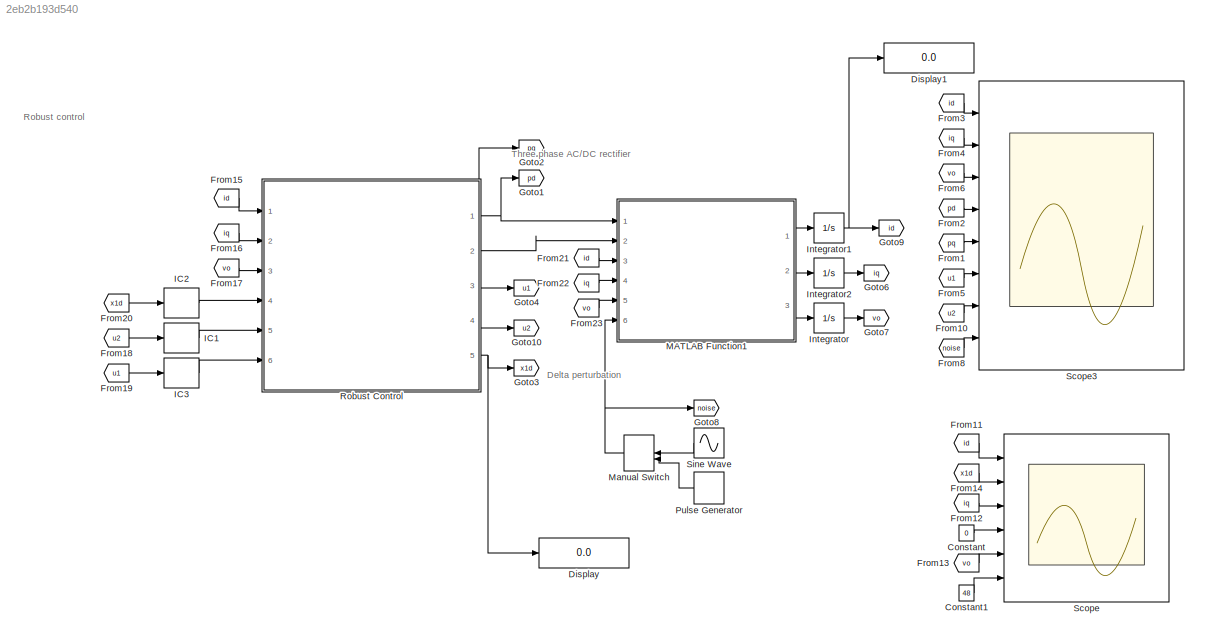
MODEL slx_2eb2b193d540
KIND model
CONFIG AbsTol = auto
CONFIG EnableMultiTasking = off
CONFIG FixedStep = auto
CONFIG MaxStep = auto
CONFIG MinStep = auto
CONFIG RelTol = 1e-3
CONFIG SampleTimeConstraint = Unconstrained
CONFIG SolverName = VariableStepAuto
CONFIG StartTime = 0.0
CONFIG StopTime = 10
BLOCK [Constant] Constant
  Value = 0
BLOCK [Constant] Constant1
  Value = 48
BLOCK [Display] Display
  Decimation = 1
  Ports = [1]
BLOCK [Display] Display1
  Decimation = 1
  Ports = [1]
BLOCK [From] From1
  GotoTag = pq
BLOCK [From] From10
  GotoTag = u2
BLOCK [From] From11
  GotoTag = id
BLOCK [From] From12
  GotoTag = iq
BLOCK [From] From13
  GotoTag = vo
BLOCK [From] From14
  GotoTag = x1d
BLOCK [From] From15
  GotoTag = id
BLOCK [From] From16
  GotoTag = iq
BLOCK [From] From17
  GotoTag = vo
BLOCK [From] From18
  GotoTag = u2
BLOCK [From] From19
  GotoTag = u1
BLOCK [From] From2
  GotoTag = pd
BLOCK [From] From20
  GotoTag = x1d
BLOCK [From] From21
  GotoTag = id
BLOCK [From] From22
  GotoTag = iq
BLOCK [From] From23
  GotoTag = vo
BLOCK [From] From3
  GotoTag = id
BLOCK [From] From4
  GotoTag = iq
BLOCK [From] From5
  GotoTag = u1
BLOCK [From] From6
  GotoTag = vo
BLOCK [From] From8
  GotoTag = noise
BLOCK [Goto] Goto1
  GotoTag = pd
BLOCK [Goto] Goto10
  GotoTag = u2
BLOCK [Goto] Goto2
  GotoTag = pq
BLOCK [Goto] Goto3
  GotoTag = x1d
BLOCK [Goto] Goto4
  GotoTag = u1
BLOCK [Goto] Goto6
  GotoTag = iq
BLOCK [Goto] Goto7
  GotoTag = vo
BLOCK [Goto] Goto8
  GotoTag = noise
BLOCK [Goto] Goto9
  GotoTag = id
BLOCK [InitialCondition] IC1
  Value = 0.00001
BLOCK [InitialCondition] IC2
  Value = 0.00001
BLOCK [InitialCondition] IC3
  Value = 0.00001
BLOCK [Integrator] Integrator
  InitialCondition = 0.1
  Ports = [1, 1]
BLOCK [Integrator] Integrator1
  InitialCondition = 0.1
  Ports = [1, 1]
BLOCK [Integrator] Integrator2
  InitialCondition = 0.1
  Ports = [1, 1]
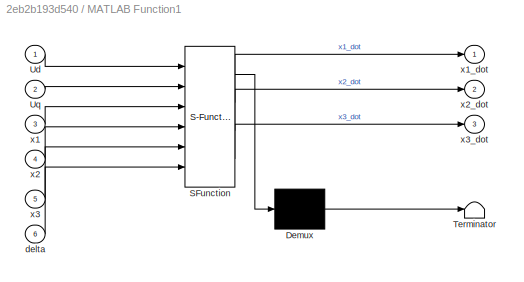
BLOCK [SubSystem] MATLAB Function1
  ErrorFcn = Stateflow.Translate.translate
  PermitHierarchicalResolution = ExplicitOnly
  Ports = [6, 3]
  RequestExecContextInheritance = off
  SFBlockType = MATLAB Function
  TreatAsAtomicUnit = on
BLOCK [Demux] MATLAB Function1/ Demux 
  Outputs = 1
  Ports = [1, 1]
BLOCK [S-Function] MATLAB Function1/ SFunction 
  EnableBusSupport = on
  FunctionName = sf_sfun
  Parameters = C,Em,L,R,Rl,w
  PortCounts = [6 4]
  Ports = [6, 4]
  SFcnIsStateOwnerBlock = off
  SFunctionDeploymentMode = off
  Tag = Stateflow S-Function 7
BLOCK [Terminator] MATLAB Function1/ Terminator 
BLOCK [Inport] MATLAB Function1/Ud
BLOCK [Inport] MATLAB Function1/Uq
  Port = 2
BLOCK [Inport] MATLAB Function1/delta
  Port = 6
BLOCK [Inport] MATLAB Function1/x1
  Port = 3
BLOCK [Outport] MATLAB Function1/x1_dot
BLOCK [Inport] MATLAB Function1/x2
  Port = 4
BLOCK [Outport] MATLAB Function1/x2_dot
  Port = 2
BLOCK [Inport] MATLAB Function1/x3
  Port = 5
BLOCK [Outport] MATLAB Function1/x3_dot
  Port = 3
BLOCK [ManualSwitch] Manual Switch
  CurrentSetting = 0
  NameLocation = top
BLOCK [DiscretePulseGenerator] Pulse Generator
  Amplitude = 50
  NameLocation = top
  Period = 1
  Ports = [0, 1]
  PulseType = Time based
  PulseWidth = 20
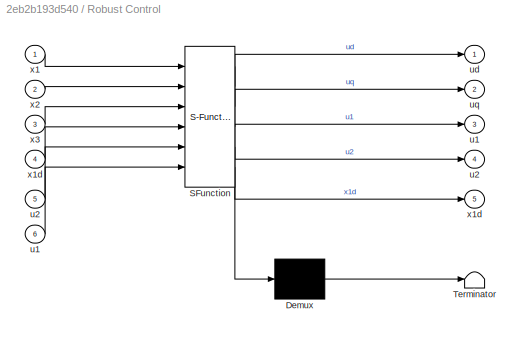
BLOCK [SubSystem] Robust Control
  ErrorFcn = Stateflow.Translate.translate
  PermitHierarchicalResolution = ExplicitOnly
  Ports = [6, 5]
  RequestExecContextInheritance = off
  SFBlockType = MATLAB Function
  TreatAsAtomicUnit = on
BLOCK [Demux] Robust Control/ Demux 
  Outputs = 1
  Ports = [1, 1]
BLOCK [S-Function] Robust Control/ SFunction 
  EnableBusSupport = on
  FunctionName = sf_sfun
  Parameters = C,Em,L,R,Rl,epsilon,k1,k2,k3,w,x2d,x3d
  PortCounts = [6 6]
  Ports = [6, 6]
  SFcnIsStateOwnerBlock = off
  SFunctionDeploymentMode = off
  Tag = Stateflow S-Function 4
BLOCK [Terminator] Robust Control/ Terminator 
BLOCK [Outport] Robust Control/u1
  Port = 3
BLOCK [Inport] Robust Control/u1 
  Port = 6
BLOCK [Outport] Robust Control/u2
  Port = 4
BLOCK [Inport] Robust Control/u2 
  Port = 5
BLOCK [Outport] Robust Control/ud
  VectorParamsAs1DForOutWhenUnconnected = off
BLOCK [Outport] Robust Control/uq
  Port = 2
  VectorParamsAs1DForOutWhenUnconnected = off
BLOCK [Inport] Robust Control/x1
BLOCK [Outport] Robust Control/x1d
  Port = 5
BLOCK [Inport] Robust Control/x1d 
  Port = 4
BLOCK [Inport] Robust Control/x2
  Port = 2
BLOCK [Inport] Robust Control/x3
  Port = 3
BLOCK [Scope] Scope
  Floating = off
  NumInputPorts = 6
  Ports = [6]
  ScopeSpecificationString = Simulink.scopes.TimeScopeBlockCfg('CurrentConfiguration', extmgr.ConfigurationSet(extmgr.Configuration('Core','General UI',true),extmgr.Configuration('Core','Source UI',true),extmgr.Configuration('Sources','WiredSimulink',true,'DataLoggingVariableName','ScopeData1'),extmgr.Configuration('Visuals','Time Domain',true,'SerializedDisplays',{struct('MinYLimReal','-3.16663','MaxYLimReal','29.49971','YLa...<+3032ch>
BLOCK [Scope] Scope3
  Floating = off
  NumInputPorts = 8
  Ports = [8]
  ScopeSpecificationString = Simulink.scopes.TimeScopeBlockCfg('CurrentConfiguration', extmgr.ConfigurationSet(extmgr.Configuration('Core','General UI',true),extmgr.Configuration('Core','Source UI',true),extmgr.Configuration('Sources','WiredSimulink',true,'DataLoggingVariableName','ScopeData2'),extmgr.Configuration('Visuals','Time Domain',true,'SerializedDisplays',{struct('MinYLimReal','-99.81534','MaxYLimReal','899.33804','Y...<+9454ch>
BLOCK [Sin] Sine Wave
  Amplitude = 10
  Frequency = 5
  NameLocation = top
  Ports = [0, 1]
  SampleTime = 0
ANNOTATION (root): Delta perturbation
ANNOTATION (root): Robust control
ANNOTATION (root): Three phase AC/DC rectifier
LINE Constant1:1 -> Scope:6
LINE Constant:1 -> Scope:4
LINE From10:1 -> Scope3:7
LINE From11:1 -> Scope:1
LINE From12:1 -> Scope:3
LINE From13:1 -> Scope:5
LINE From14:1 -> Scope:2
LINE From15:1 -> Robust Control:1
LINE From16:1 -> Robust Control:2
LINE From17:1 -> Robust Control:3
LINE From18:1 -> IC1:1
LINE From19:1 -> IC3:1
LINE From1:1 -> Scope3:5
LINE From20:1 -> IC2:1
LINE From21:1 -> MATLAB Function1:3
LINE From22:1 -> MATLAB Function1:4
LINE From23:1 -> MATLAB Function1:5
LINE From2:1 -> Scope3:4
LINE From3:1 -> Scope3:1
LINE From4:1 -> Scope3:2
LINE From5:1 -> Scope3:6
LINE From6:1 -> Scope3:3
LINE From8:1 -> Scope3:8
LINE IC1:1 -> Robust Control:5
LINE IC2:1 -> Robust Control:4
LINE IC3:1 -> Robust Control:6
NET Integrator1:1 -> Display1:1, Goto9:1
LINE Integrator2:1 -> Goto6:1
LINE Integrator:1 -> Goto7:1
LINE MATLAB Function1:1 -> Integrator1:1
LINE MATLAB Function1:2 -> Integrator2:1
LINE MATLAB Function1:3 -> Integrator:1
NET Manual Switch:1 -> Goto8:1, MATLAB Function1:6
LINE Pulse Generator:1 -> Manual Switch:2
NET Robust Control:1 -> Goto1:1, MATLAB Function1:1
NET Robust Control:2 -> Goto2:1, MATLAB Function1:2
LINE Robust Control:3 -> Goto4:1
LINE Robust Control:4 -> Goto10:1
NET Robust Control:5 -> Display:1, Goto3:1
LINE Sine Wave:1 -> Manual Switch:1
note: NET lines group one-source signal fan-out (src -> all destinations, sorted); 1:1 wires keep LINE
CHART Robust Control states=1 transitions=1
  STATE_LABEL 'eML_blk_kernel()'
  STATE_LABEL 'SCRIPT:\nfunction [ud , uq, u1,u2,x1d] = fcn(x1, x2, x3,Em,C, L, w, R, x3d, x2d,k3, k2,Rl,x1d, k1,u2,u1,epsilon)\n\ne1 = x1 - x1d; e2 = x2 - x2d;      e3 = x3 - x3d; \n\n%x1d = x1d_1;\nx1d = (2*C*u2*(e3 + x3d))/(3*L*u1) - e1;\n%x1d = -sqrt((2*(x3d)^2)/(3*L*Rl - (R/L) + (Em/L)));\n%x1d = -(3^(1/2)*(Rl*(3*Rl*Em^2 - 8*R*x3d^2))^(1/2) + 3*Em*Rl)/(6*R*Rl);\n \n%x1d = ((Em + 3*L^2 + (Em^2 + 6*Em*L^2 + 9*L^4 - 8*R...<+751ch>'
CHART MATLAB Function1 states=1 transitions=1
  STATE_LABEL 'eML_blk_kernel()'
  STATE_LABEL 'SCRIPT:\nfunction [x1_dot,x2_dot,x3_dot] = fcn(Ud,Uq,x1,x2,x3,w, L, R, Em, delta, C, Rl)\n\nx1_dot = - ((R*x1)/(L)) - w*x2 - (x3*Ud)/(2*L) + (Em/L);\nx2_dot = - R*x2/L + w*x1 - ((x3*Uq)/(2*L));\nx3_dot = (3*x1*Ud)/(4*C) + (3*x2*Uq)/(4*C) - (((x3)/(Rl*C))+ delta) ;'
CHART  states=0 transitions=0
CHART  states=0 transitions=0
